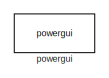
[diagram: root canvas - part 1/4, top center region]
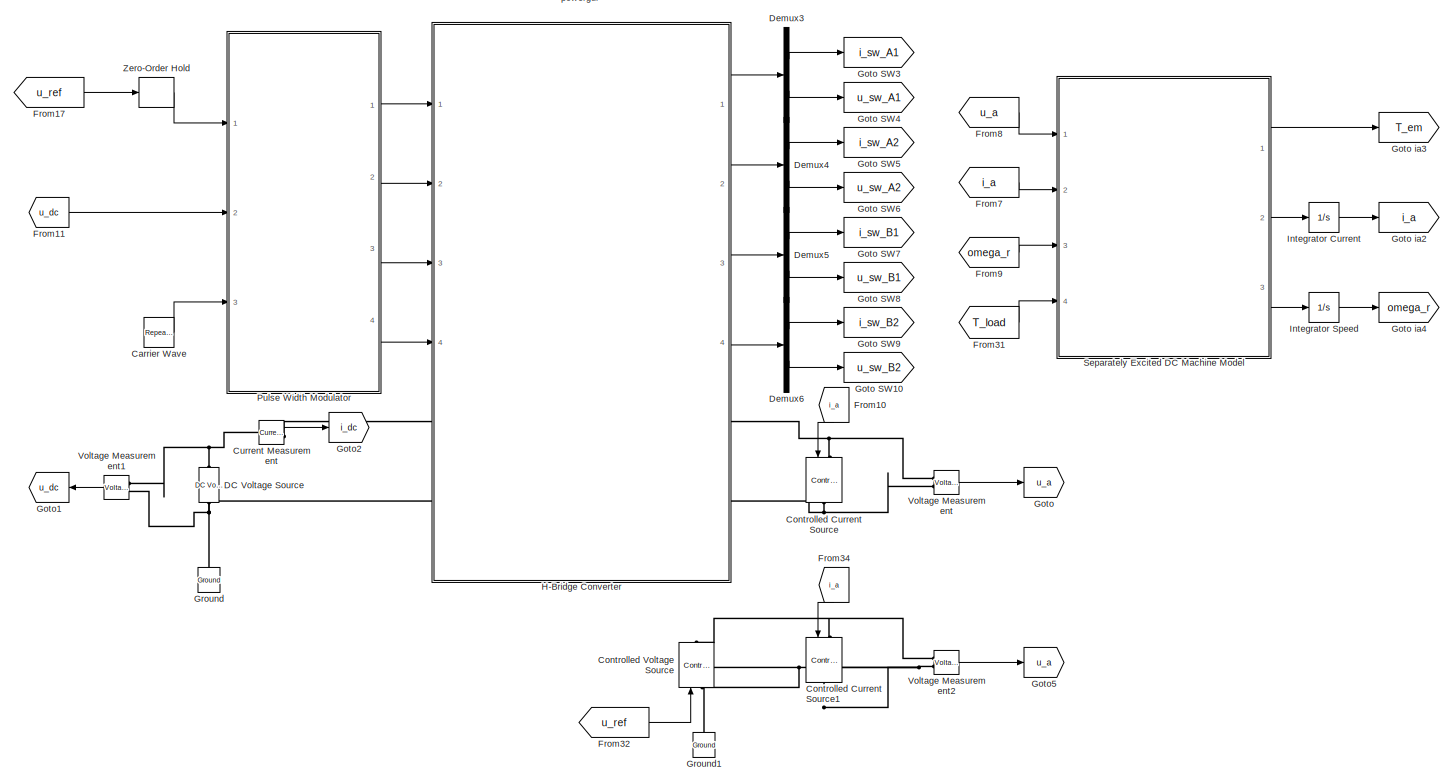
[diagram: root canvas - part 2/4, center side, full height]
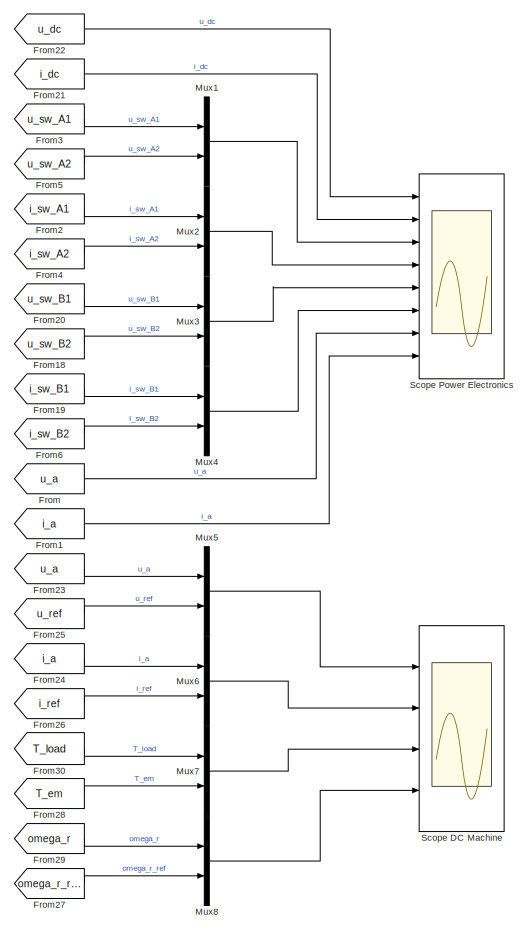
[diagram: root canvas - part 3/4, right side, full height]
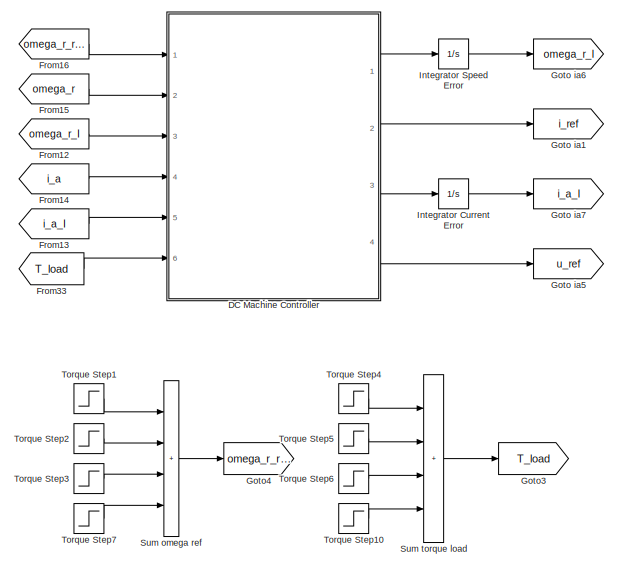
[diagram: root canvas - part 4/4, middle left region]
MODEL slx_a2377a1aa109
KIND model
CONFIG AbsTol = auto
CONFIG EnableMultiTasking = off
CONFIG FixedStep = auto
CONFIG MaxStep = T.FFT
CONFIG MinStep = auto
CONFIG RelTol = 1e-3
CONFIG SampleTimeConstraint = Unconstrained
CONFIG SolverName = VariableStepAuto
CONFIG StartTime = 0.0
CONFIG StopTime = 8
BLOCK [Reference] Carrier Wave  REF=simulink/Sources/Repeating
Sequence
  Ports = [0, 1]
  SourceBlock = simulink/Sources/Repeating\nSequence
  SourceProductBaseCode = SL
  SourceType = Repeating table
BLOCK [Reference] Controlled Current Source  REF=spsControlledCurrentSourceLib/Controlled Current Source
  NameLocation = right
  Ports = [1, 0, 0, 0, 0, 1, 1]
  SourceBlock = spsControlledCurrentSourceLib/Controlled Current Source
  SourceProductBaseCode = PS
  SourceType = Controlled Current Source
BLOCK [Reference] Controlled Current Source1  REF=spsControlledCurrentSourceLib/Controlled Current Source
  NameLocation = right
  Ports = [1, 0, 0, 0, 0, 1, 1]
  SourceBlock = spsControlledCurrentSourceLib/Controlled Current Source
  SourceProductBaseCode = PS
  SourceType = Controlled Current Source
BLOCK [Reference] Controlled Voltage Source  REF=spsControlledVoltageSourceLib/Controlled Voltage Source
  NameLocation = right
  Ports = [1, 0, 0, 0, 0, 1, 1]
  SourceBlock = spsControlledVoltageSourceLib/Controlled Voltage Source
  SourceProductBaseCode = PS
  SourceType = Controlled Voltage Source
BLOCK [Reference] Current Measurement  REF=spsCurrentMeasurementLib/Current Measurement
  Ports = [0, 1, 0, 0, 0, 1, 1]
  SourceBlock = spsCurrentMeasurementLib/Current Measurement
  SourceProductBaseCode = PS
  SourceType = Current Measurement
  UserDataPersistent = on
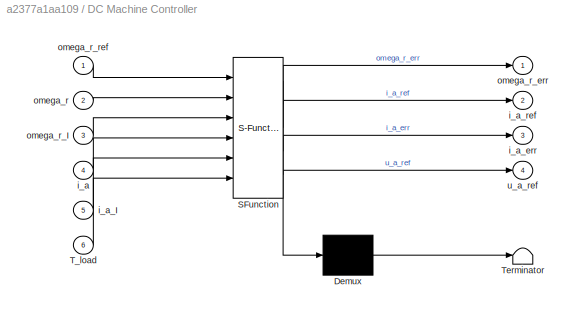
BLOCK [SubSystem] DC Machine Controller
  ErrorFcn = Stateflow.Translate.translate
  PermitHierarchicalResolution = ExplicitOnly
  Ports = [6, 4]
  RequestExecContextInheritance = off
  SFBlockType = MATLAB Function
  TreatAsAtomicUnit = on
BLOCK [Demux] DC Machine Controller/ Demux 
  Outputs = 1
  Ports = [1, 1]
BLOCK [S-Function] DC Machine Controller/ SFunction 
  EnableBusSupport = on
  FunctionName = sf_sfun
  Parameters = ctrl
  PortCounts = [6 5]
  Ports = [6, 5]
  SFcnIsStateOwnerBlock = off
  SFunctionDeploymentMode = off
  Tag = Stateflow S-Function 3
BLOCK [Terminator] DC Machine Controller/ Terminator 
BLOCK [Inport] DC Machine Controller/T_load
  Port = 6
BLOCK [Inport] DC Machine Controller/i_a
  Port = 4
BLOCK [Inport] DC Machine Controller/i_a_I
  Port = 5
BLOCK [Outport] DC Machine Controller/i_a_err
  Port = 3
BLOCK [Outport] DC Machine Controller/i_a_ref
  Port = 2
BLOCK [Inport] DC Machine Controller/omega_r
  Port = 2
BLOCK [Inport] DC Machine Controller/omega_r_I
  Port = 3
BLOCK [Outport] DC Machine Controller/omega_r_err
BLOCK [Inport] DC Machine Controller/omega_r_ref
BLOCK [Outport] DC Machine Controller/u_a_ref
  Port = 4
BLOCK [Reference] DC Voltage Source  REF=spsDCVoltageSourceLib/DC Voltage Source
  NameLocation = right
  Ports = [0, 0, 0, 0, 0, 1, 1]
  SourceBlock = spsDCVoltageSourceLib/DC Voltage Source
  SourceProductBaseCode = PS
  SourceType = DC Voltage Source
BLOCK [Demux] Demux3
  Outputs = 2
  Ports = [1, 2]
BLOCK [Demux] Demux4
  Outputs = 2
  Ports = [1, 2]
BLOCK [Demux] Demux5
  Outputs = 2
  Ports = [1, 2]
BLOCK [Demux] Demux6
  Outputs = 2
  Ports = [1, 2]
BLOCK [From] From
  GotoTag = u_a
BLOCK [From] From1
  GotoTag = i_a
BLOCK [From] From10
  GotoTag = i_a
  NameLocation = left
BLOCK [From] From11
  GotoTag = u_dc
  NameLocation = top
BLOCK [From] From12
  GotoTag = omega_r_I
BLOCK [From] From13
  GotoTag = i_a_I
BLOCK [From] From14
  GotoTag = i_a
BLOCK [From] From15
  GotoTag = omega_r
BLOCK [From] From16
  GotoTag = omega_r_ref
BLOCK [From] From17
  GotoTag = u_ref
BLOCK [From] From18
  GotoTag = u_sw_B2
BLOCK [From] From19
  GotoTag = i_sw_B1
BLOCK [From] From2
  GotoTag = i_sw_A1
BLOCK [From] From20
  GotoTag = u_sw_B1
BLOCK [From] From21
  GotoTag = i_dc
  NameLocation = top
BLOCK [From] From22
  GotoTag = u_dc
  NameLocation = top
BLOCK [From] From23
  GotoTag = u_a
BLOCK [From] From24
  GotoTag = i_a
BLOCK [From] From25
  GotoTag = u_ref
BLOCK [From] From26
  GotoTag = i_ref
BLOCK [From] From27
  GotoTag = omega_r_ref
BLOCK [From] From28
  GotoTag = T_em
BLOCK [From] From29
  GotoTag = omega_r
BLOCK [From] From3
  GotoTag = u_sw_A1
BLOCK [From] From30
  GotoTag = T_load
BLOCK [From] From31
  GotoTag = T_load
BLOCK [From] From32
  GotoTag = u_ref
BLOCK [From] From33
  Commented = on
  GotoTag = T_load
BLOCK [From] From34
  GotoTag = i_a
  NameLocation = left
BLOCK [From] From4
  GotoTag = i_sw_A2
BLOCK [From] From5
  GotoTag = u_sw_A2
BLOCK [From] From6
  GotoTag = i_sw_B2
BLOCK [From] From7
  GotoTag = i_a
BLOCK [From] From8
  GotoTag = u_a
BLOCK [From] From9
  GotoTag = omega_r
BLOCK [Goto] Goto
  GotoTag = u_a
BLOCK [Goto] Goto SW10
  GotoTag = u_sw_B2
BLOCK [Goto] Goto SW3
  GotoTag = i_sw_A1
BLOCK [Goto] Goto SW4
  GotoTag = u_sw_A1
BLOCK [Goto] Goto SW5
  GotoTag = i_sw_A2
BLOCK [Goto] Goto SW6
  GotoTag = u_sw_A2
BLOCK [Goto] Goto SW7
  GotoTag = i_sw_B1
BLOCK [Goto] Goto SW8
  GotoTag = u_sw_B1
BLOCK [Goto] Goto SW9
  GotoTag = i_sw_B2
BLOCK [Goto] Goto ia1
  GotoTag = i_ref
BLOCK [Goto] Goto ia2
  GotoTag = i_a
BLOCK [Goto] Goto ia3
  GotoTag = T_em
BLOCK [Goto] Goto ia4
  GotoTag = omega_r
BLOCK [Goto] Goto ia5
  GotoTag = u_ref
BLOCK [Goto] Goto ia6
  GotoTag = omega_r_I
BLOCK [Goto] Goto ia7
  GotoTag = i_a_I
BLOCK [Goto] Goto1
  GotoTag = u_dc
  NameLocation = top
BLOCK [Goto] Goto2
  GotoTag = i_dc
BLOCK [Goto] Goto3
  GotoTag = T_load
BLOCK [Goto] Goto4
  GotoTag = omega_r_ref
BLOCK [Goto] Goto5
  Commented = on
  GotoTag = u_a
BLOCK [Reference] Ground  REF=spsGroundLib/Ground
  NameLocation = right
  Ports = [0, 0, 0, 0, 0, 1]
  SourceBlock = spsGroundLib/Ground
  SourceProductBaseCode = PS
  SourceType = Ground
BLOCK [Reference] Ground1  REF=spsGroundLib/Ground
  NameLocation = right
  Ports = [0, 0, 0, 0, 0, 1]
  SourceBlock = spsGroundLib/Ground
  SourceProductBaseCode = PS
  SourceType = Ground
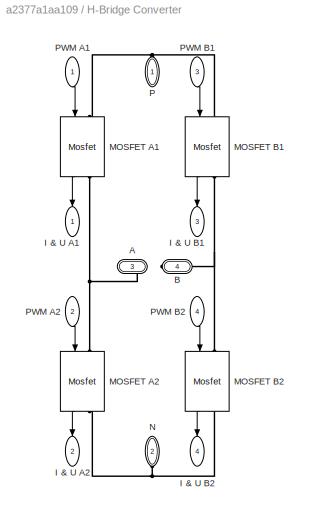
BLOCK [SubSystem] H-Bridge Converter
  Ports = [4, 4, 0, 0, 0, 2, 2]
  RequestExecContextInheritance = off
BLOCK [PMIOPort] H-Bridge Converter/A
  Port = 3
  Side = Right
BLOCK [PMIOPort] H-Bridge Converter/B
  Port = 4
  Side = Right
BLOCK [Outport] H-Bridge Converter/I & U A1
  NameLocation = left
BLOCK [Outport] H-Bridge Converter/I & U A2
  NameLocation = left
  Port = 2
BLOCK [Outport] H-Bridge Converter/I & U B1
  NameLocation = right
  Port = 3
BLOCK [Outport] H-Bridge Converter/I & U B2
  NameLocation = right
  Port = 4
BLOCK [Reference] H-Bridge Converter/MOSFET A1  REF=spsMosfetLib/Mosfet
  NameLocation = left
  Ports = [1, 1, 0, 0, 0, 1, 1]
  SourceBlock = spsMosfetLib/Mosfet
  SourceProductBaseCode = PS
  SourceType = Mosfet
BLOCK [Reference] H-Bridge Converter/MOSFET A2  REF=spsMosfetLib/Mosfet
  NameLocation = left
  Ports = [1, 1, 0, 0, 0, 1, 1]
  SourceBlock = spsMosfetLib/Mosfet
  SourceProductBaseCode = PS
  SourceType = Mosfet
BLOCK [Reference] H-Bridge Converter/MOSFET B1  REF=spsMosfetLib/Mosfet
  NameLocation = right
  Ports = [1, 1, 0, 0, 0, 1, 1]
  SourceBlock = spsMosfetLib/Mosfet
  SourceProductBaseCode = PS
  SourceType = Mosfet
BLOCK [Reference] H-Bridge Converter/MOSFET B2  REF=spsMosfetLib/Mosfet
  NameLocation = right
  Ports = [1, 1, 0, 0, 0, 1, 1]
  SourceBlock = spsMosfetLib/Mosfet
  SourceProductBaseCode = PS
  SourceType = Mosfet
BLOCK [PMIOPort] H-Bridge Converter/N
  NameLocation = left
  Port = 2
  Side = Left
BLOCK [PMIOPort] H-Bridge Converter/P
  NameLocation = left
  Side = Left
BLOCK [Inport] H-Bridge Converter/PWM A1
  NameLocation = left
BLOCK [Inport] H-Bridge Converter/PWM A2
  NameLocation = left
  Port = 2
BLOCK [Inport] H-Bridge Converter/PWM B1
  NameLocation = right
  Port = 3
BLOCK [Inport] H-Bridge Converter/PWM B2
  NameLocation = right
  Port = 4
BLOCK [Integrator] Integrator Current
  Ports = [1, 1]
BLOCK [Integrator] Integrator Current Error
  Ports = [1, 1]
BLOCK [Integrator] Integrator Speed
  Ports = [1, 1]
BLOCK [Integrator] Integrator Speed Error
  Ports = [1, 1]
BLOCK [Mux] Mux1
  DisplayOption = bar
  Inputs = 2
  Ports = [2, 1]
BLOCK [Mux] Mux2
  DisplayOption = bar
  Inputs = 2
  Ports = [2, 1]
BLOCK [Mux] Mux3
  DisplayOption = bar
  Inputs = 2
  Ports = [2, 1]
BLOCK [Mux] Mux4
  DisplayOption = bar
  Inputs = 2
  Ports = [2, 1]
BLOCK [Mux] Mux5
  DisplayOption = bar
  Inputs = 2
  Ports = [2, 1]
BLOCK [Mux] Mux6
  DisplayOption = bar
  Inputs = 2
  Ports = [2, 1]
BLOCK [Mux] Mux7
  DisplayOption = bar
  Inputs = 2
  Ports = [2, 1]
BLOCK [Mux] Mux8
  DisplayOption = bar
  Inputs = 2
  Ports = [2, 1]
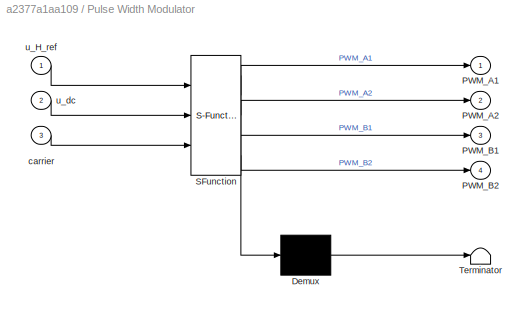
BLOCK [SubSystem] Pulse Width Modulator
  ErrorFcn = Stateflow.Translate.translate
  PermitHierarchicalResolution = ExplicitOnly
  Ports = [3, 4]
  RequestExecContextInheritance = off
  SFBlockType = MATLAB Function
  TreatAsAtomicUnit = on
BLOCK [Demux] Pulse Width Modulator/ Demux 
  Outputs = 1
  Ports = [1, 1]
BLOCK [S-Function] Pulse Width Modulator/ SFunction 
  EnableBusSupport = on
  FunctionName = sf_sfun
  PortCounts = [3 5]
  Ports = [3, 5]
  SFcnIsStateOwnerBlock = off
  SFunctionDeploymentMode = off
  Tag = Stateflow S-Function 1
BLOCK [Terminator] Pulse Width Modulator/ Terminator 
BLOCK [Outport] Pulse Width Modulator/PWM_A1
BLOCK [Outport] Pulse Width Modulator/PWM_A2
  Port = 2
BLOCK [Outport] Pulse Width Modulator/PWM_B1
  Port = 3
BLOCK [Outport] Pulse Width Modulator/PWM_B2
  Port = 4
BLOCK [Inport] Pulse Width Modulator/carrier
  Port = 3
BLOCK [Inport] Pulse Width Modulator/u_H_ref
BLOCK [Inport] Pulse Width Modulator/u_dc
  Port = 2
BLOCK [Scope] Scope DC Machine
  Floating = off
  NumInputPorts = 4
  Ports = [4]
  ScopeSpecificationString = Simulink.scopes.TimeScopeBlockCfg('CurrentConfiguration', extmgr.ConfigurationSet(extmgr.Configuration('Core','General UI',true),extmgr.Configuration('Core','Source UI',true),extmgr.Configuration('Sources','WiredSimulink',true,'DataLoggingVariableName','ScopeData2'),extmgr.Configuration('Visuals','Time Domain',true,'SerializedDisplays',{struct('MinYLimReal','-325.01074','MaxYLimReal','325.09343','...<+3627ch>
BLOCK [Scope] Scope Power Electronics
  Floating = off
  NumInputPorts = 8
  Ports = [8]
  ScopeSpecificationString = Simulink.scopes.TimeScopeBlockCfg('CurrentConfiguration', extmgr.ConfigurationSet(extmgr.Configuration('Core','General UI',true),extmgr.Configuration('Core','Source UI',true),extmgr.Configuration('Sources','WiredSimulink',true,'DataLoggingVariableName','ScopeData1'),extmgr.Configuration('Visuals','Time Domain',true,'SerializedDisplays',{struct('MinYLimReal','160.00000','MaxYLimReal','360.00000','Y...<+6238ch>
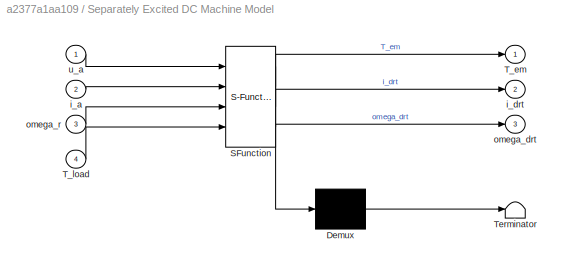
BLOCK [SubSystem] Separately Excited DC Machine Model
  ErrorFcn = Stateflow.Translate.translate
  PermitHierarchicalResolution = ExplicitOnly
  Ports = [4, 3]
  RequestExecContextInheritance = off
  SFBlockType = MATLAB Function
  TreatAsAtomicUnit = on
BLOCK [Demux] Separately Excited DC Machine Model/ Demux 
  Outputs = 1
  Ports = [1, 1]
BLOCK [S-Function] Separately Excited DC Machine Model/ SFunction 
  EnableBusSupport = on
  FunctionName = sf_sfun
  Parameters = EM
  PortCounts = [4 4]
  Ports = [4, 4]
  SFcnIsStateOwnerBlock = off
  SFunctionDeploymentMode = off
  Tag = Stateflow S-Function 2
BLOCK [Terminator] Separately Excited DC Machine Model/ Terminator 
BLOCK [Outport] Separately Excited DC Machine Model/T_em
BLOCK [Inport] Separately Excited DC Machine Model/T_load
  Port = 4
BLOCK [Inport] Separately Excited DC Machine Model/i_a
  Port = 2
BLOCK [Outport] Separately Excited DC Machine Model/i_drt
  Port = 2
BLOCK [Outport] Separately Excited DC Machine Model/omega_drt
  Port = 3
BLOCK [Inport] Separately Excited DC Machine Model/omega_r
  Port = 3
BLOCK [Inport] Separately Excited DC Machine Model/u_a
BLOCK [Sum] Sum omega ref
  IconShape = rectangular
  Inputs = ++++
  Ports = [4, 1]
BLOCK [Sum] Sum torque load
  IconShape = rectangular
  Inputs = ++++
  Ports = [4, 1]
BLOCK [Step] Torque Step1
  After = omega_ref.step_1
  SampleTime = 0
  Time = omega_ref.time_1
BLOCK [Step] Torque Step10
  After = torque_load.step_4
  SampleTime = 0
  Time = torque_load.time_4
BLOCK [Step] Torque Step2
  After = omega_ref.step_2
  SampleTime = 0
  Time = omega_ref.time_2
BLOCK [Step] Torque Step3
  After = omega_ref.step_3
  SampleTime = 0
  Time = omega_ref.time_3
BLOCK [Step] Torque Step4
  After = torque_load.step_1
  SampleTime = 0
  Time = torque_load.time_1
BLOCK [Step] Torque Step5
  After = torque_load.step_2
  SampleTime = 0
  Time = torque_load.time_2
BLOCK [Step] Torque Step6
  After = torque_load.step_3
  SampleTime = 0
  Time = torque_load.time_3
BLOCK [Step] Torque Step7
  After = omega_ref.step_4
  SampleTime = 0
  Time = omega_ref.time_4
BLOCK [Reference] Voltage Measurement  REF=spsVoltageMeasurementLib/Voltage Measurement
  Ports = [0, 1, 0, 0, 0, 2]
  SourceBlock = spsVoltageMeasurementLib/Voltage Measurement
  SourceProductBaseCode = PS
  SourceType = Voltage Measurement
  UserDataPersistent = on
BLOCK [Reference] Voltage Measurement1  REF=spsVoltageMeasurementLib/Voltage Measurement
  NameLocation = top
  Ports = [0, 1, 0, 0, 0, 2]
  SourceBlock = spsVoltageMeasurementLib/Voltage Measurement
  SourceProductBaseCode = PS
  SourceType = Voltage Measurement
  UserDataPersistent = on
BLOCK [Reference] Voltage Measurement2  REF=spsVoltageMeasurementLib/Voltage Measurement
  Ports = [0, 1, 0, 0, 0, 2]
  SourceBlock = spsVoltageMeasurementLib/Voltage Measurement
  SourceProductBaseCode = PS
  SourceType = Voltage Measurement
  UserDataPersistent = on
BLOCK [ZeroOrderHold] Zero-Order Hold
  SampleTime = T.sw
BLOCK [Reference] powergui  REF=spspowerguiLib/powergui
  Ports = []
  Priority = 1
  SourceBlock = spspowerguiLib/powergui
  SourceProductBaseCode = PS
  SourceType = PSB option menu block
LINE Carrier Wave:1 -> Pulse Width Modulator:3
LINE Current Measurement:1 -> Goto2:1
LINE DC Machine Controller:1 -> Integrator Speed Error:1
LINE DC Machine Controller:2 -> Goto ia1:1
LINE DC Machine Controller:3 -> Integrator Current Error:1
LINE DC Machine Controller:4 -> Goto ia5:1
LINE Demux3:1 -> Goto SW3:1
LINE Demux3:2 -> Goto SW4:1
LINE Demux4:1 -> Goto SW5:1
LINE Demux4:2 -> Goto SW6:1
LINE Demux5:1 -> Goto SW7:1
LINE Demux5:2 -> Goto SW8:1
LINE Demux6:1 -> Goto SW9:1
LINE Demux6:2 -> Goto SW10:1
LINE From10:1 -> Controlled Current Source:1
LINE From11:1 -> Pulse Width Modulator:2
LINE From12:1 -> DC Machine Controller:3
LINE From13:1 -> DC Machine Controller:5
LINE From14:1 -> DC Machine Controller:4
LINE From15:1 -> DC Machine Controller:2
LINE From16:1 -> DC Machine Controller:1
LINE From17:1 -> Zero-Order Hold:1
LINE From18:1 -> Mux3:2
LINE From19:1 -> Mux4:1
LINE From1:1 -> Scope Power Electronics:8
LINE From20:1 -> Mux3:1
LINE From21:1 -> Scope Power Electronics:2
LINE From22:1 -> Scope Power Electronics:1
LINE From23:1 -> Mux5:1
LINE From24:1 -> Mux6:1
LINE From25:1 -> Mux5:2
LINE From26:1 -> Mux6:2
LINE From27:1 -> Mux8:2
LINE From28:1 -> Mux7:2
LINE From29:1 -> Mux8:1
LINE From2:1 -> Mux2:1
LINE From30:1 -> Mux7:1
LINE From31:1 -> Separately Excited DC Machine Model:4
LINE From32:1 -> Controlled Voltage Source:1
LINE From33:1 -> DC Machine Controller:6
LINE From34:1 -> Controlled Current Source1:1
LINE From3:1 -> Mux1:1
LINE From4:1 -> Mux2:2
LINE From5:1 -> Mux1:2
LINE From6:1 -> Mux4:2
LINE From7:1 -> Separately Excited DC Machine Model:2
LINE From8:1 -> Separately Excited DC Machine Model:1
LINE From9:1 -> Separately Excited DC Machine Model:3
LINE From:1 -> Scope Power Electronics:7
LINE H-Bridge Converter/MOSFET A1:1 -> H-Bridge Converter/I & U A1:1
LINE H-Bridge Converter/MOSFET A2:1 -> H-Bridge Converter/I & U A2:1
LINE H-Bridge Converter/MOSFET B1:1 -> H-Bridge Converter/I & U B1:1
LINE H-Bridge Converter/MOSFET B2:1 -> H-Bridge Converter/I & U B2:1
LINE H-Bridge Converter/PWM A1:1 -> H-Bridge Converter/MOSFET A1:1
LINE H-Bridge Converter/PWM A2:1 -> H-Bridge Converter/MOSFET A2:1
LINE H-Bridge Converter/PWM B1:1 -> H-Bridge Converter/MOSFET B1:1
LINE H-Bridge Converter/PWM B2:1 -> H-Bridge Converter/MOSFET B2:1
LINE H-Bridge Converter:1 -> Demux3:1
LINE H-Bridge Converter:2 -> Demux4:1
LINE H-Bridge Converter:3 -> Demux5:1
LINE H-Bridge Converter:4 -> Demux6:1
LINE Integrator Current Error:1 -> Goto ia7:1
LINE Integrator Current:1 -> Goto ia2:1
LINE Integrator Speed Error:1 -> Goto ia6:1
LINE Integrator Speed:1 -> Goto ia4:1
LINE Mux1:1 -> Scope Power Electronics:3
LINE Mux2:1 -> Scope Power Electronics:4
LINE Mux3:1 -> Scope Power Electronics:5
LINE Mux4:1 -> Scope Power Electronics:6
LINE Mux5:1 -> Scope DC Machine:1
LINE Mux6:1 -> Scope DC Machine:2
LINE Mux7:1 -> Scope DC Machine:3
LINE Mux8:1 -> Scope DC Machine:4
LINE Pulse Width Modulator:1 -> H-Bridge Converter:1
LINE Pulse Width Modulator:2 -> H-Bridge Converter:2
LINE Pulse Width Modulator:3 -> H-Bridge Converter:3
LINE Pulse Width Modulator:4 -> H-Bridge Converter:4
LINE Separately Excited DC Machine Model:1 -> Goto ia3:1
LINE Separately Excited DC Machine Model:2 -> Integrator Current:1
LINE Separately Excited DC Machine Model:3 -> Integrator Speed:1
LINE Sum omega ref:1 -> Goto4:1
LINE Sum torque load:1 -> Goto3:1
LINE Torque Step10:1 -> Sum torque load:4
LINE Torque Step1:1 -> Sum omega ref:1
LINE Torque Step2:1 -> Sum omega ref:2
LINE Torque Step3:1 -> Sum omega ref:3
LINE Torque Step4:1 -> Sum torque load:1
LINE Torque Step5:1 -> Sum torque load:2
LINE Torque Step6:1 -> Sum torque load:3
LINE Torque Step7:1 -> Sum omega ref:4
LINE Voltage Measurement1:1 -> Goto1:1
LINE Voltage Measurement2:1 -> Goto5:1
LINE Voltage Measurement:1 -> Goto:1
LINE Zero-Order Hold:1 -> Pulse Width Modulator:1
PNET net1: Controlled Current Source1:LConn1 -- Controlled Voltage Source:RConn1 -- Voltage Measurement2:LConn1
PNET net2: Controlled Current Source1:RConn1 -- Controlled Voltage Source:LConn1 -- Ground1:LConn1 -- Voltage Measurement2:LConn2
PNET net3: Controlled Current Source:LConn1 -- H-Bridge Converter:RConn1 -- Voltage Measurement:LConn1
PNET net4: Controlled Current Source:RConn1 -- H-Bridge Converter:RConn2 -- Voltage Measurement:LConn2
PNET net5: Current Measurement:LConn1 -- DC Voltage Source:RConn1 -- Voltage Measurement1:LConn1
PLINE Current Measurement:RConn1 -- H-Bridge Converter:LConn1
PNET net6: DC Voltage Source:LConn1 -- Ground:LConn1 -- H-Bridge Converter:LConn2 -- Voltage Measurement1:LConn2
PNET net7: H-Bridge Converter/A:RConn1 -- H-Bridge Converter/MOSFET A1:RConn1 -- H-Bridge Converter/MOSFET A2:LConn1
PNET net8: H-Bridge Converter/B:RConn1 -- H-Bridge Converter/MOSFET B1:RConn1 -- H-Bridge Converter/MOSFET B2:LConn1
PNET net9: H-Bridge Converter/MOSFET A1:LConn1 -- H-Bridge Converter/MOSFET B1:LConn1 -- H-Bridge Converter/P:RConn1
PNET net10: H-Bridge Converter/MOSFET A2:RConn1 -- H-Bridge Converter/MOSFET B2:RConn1 -- H-Bridge Converter/N:RConn1
note: PNET lines group multi-terminal physical nets as a canonical sorted terminal list (undirected conserving connections); 2-terminal nets keep the pairwise PLINE form
CHART Pulse Width Modulator states=1 transitions=1
  STATE_LABEL 'eML_blk_kernel()'
  STATE_LABEL 'SCRIPT:\nfunction [PWM_A1,PWM_A2,PWM_B1,PWM_B2] = fcn(u_H_ref , u_dc , carrier)\n\nduty_a_ref = + u_H_ref / 2 / u_dc;\nduty_b_ref = - u_H_ref / 2 / u_dc;\n\nPWM_A1 = duty_a_ref > carrier;\nPWM_A2 = duty_a_ref < carrier;\nPWM_B1 = duty_b_ref > carrier;\nPWM_B2 = duty_b_ref < carrier;\n\nend\n'
CHART Separately Excited DC Machine Model states=1 transitions=1
  STATE_LABEL 'eML_blk_kernel()'
  STATE_LABEL 'SCRIPT:\nfunction [T_em, i_drt , omega_drt] = fcn(u_a , i_a , omega_r , T_load , EM)\n\ni_drt = (u_a - EM.lambda * omega_r - EM.R_a * i_a) / EM.L_a;\n\nT_em = EM.lambda * i_a;\n\nomega_drt = (T_em - EM.B * omega_r - T_load) / EM.J;\n\nend\n'
CHART DC Machine Controller states=1 transitions=1
  STATE_LABEL 'eML_blk_kernel()'
  STATE_LABEL 'SCRIPT:\nfunction [omega_r_err , i_a_ref , i_a_err , u_a_ref] = fcn(omega_r_ref , omega_r , omega_r_I , i_a , i_a_I , T_load , ctrl)\n\n% speed controller\n\nomega_r_err = omega_r_ref - omega_r;\n\nT_em_ref = ctrl.Kpw * omega_r_err + ctrl.Kiw * omega_r_I + T_load;\n\ni_a_ref = T_em_ref / ctrl.lambda;\n\n% current controller\n\ni_a_err = i_a_ref - i_a;\n\nu_a_ref = ctrl.Kpc * i_a_err + ctrl.Kic * i_a_I + ctrl.lam...<+20ch>'
CHART  states=0 transitions=0
CHART  states=0 transitions=0
CHART  states=0 transitions=0
